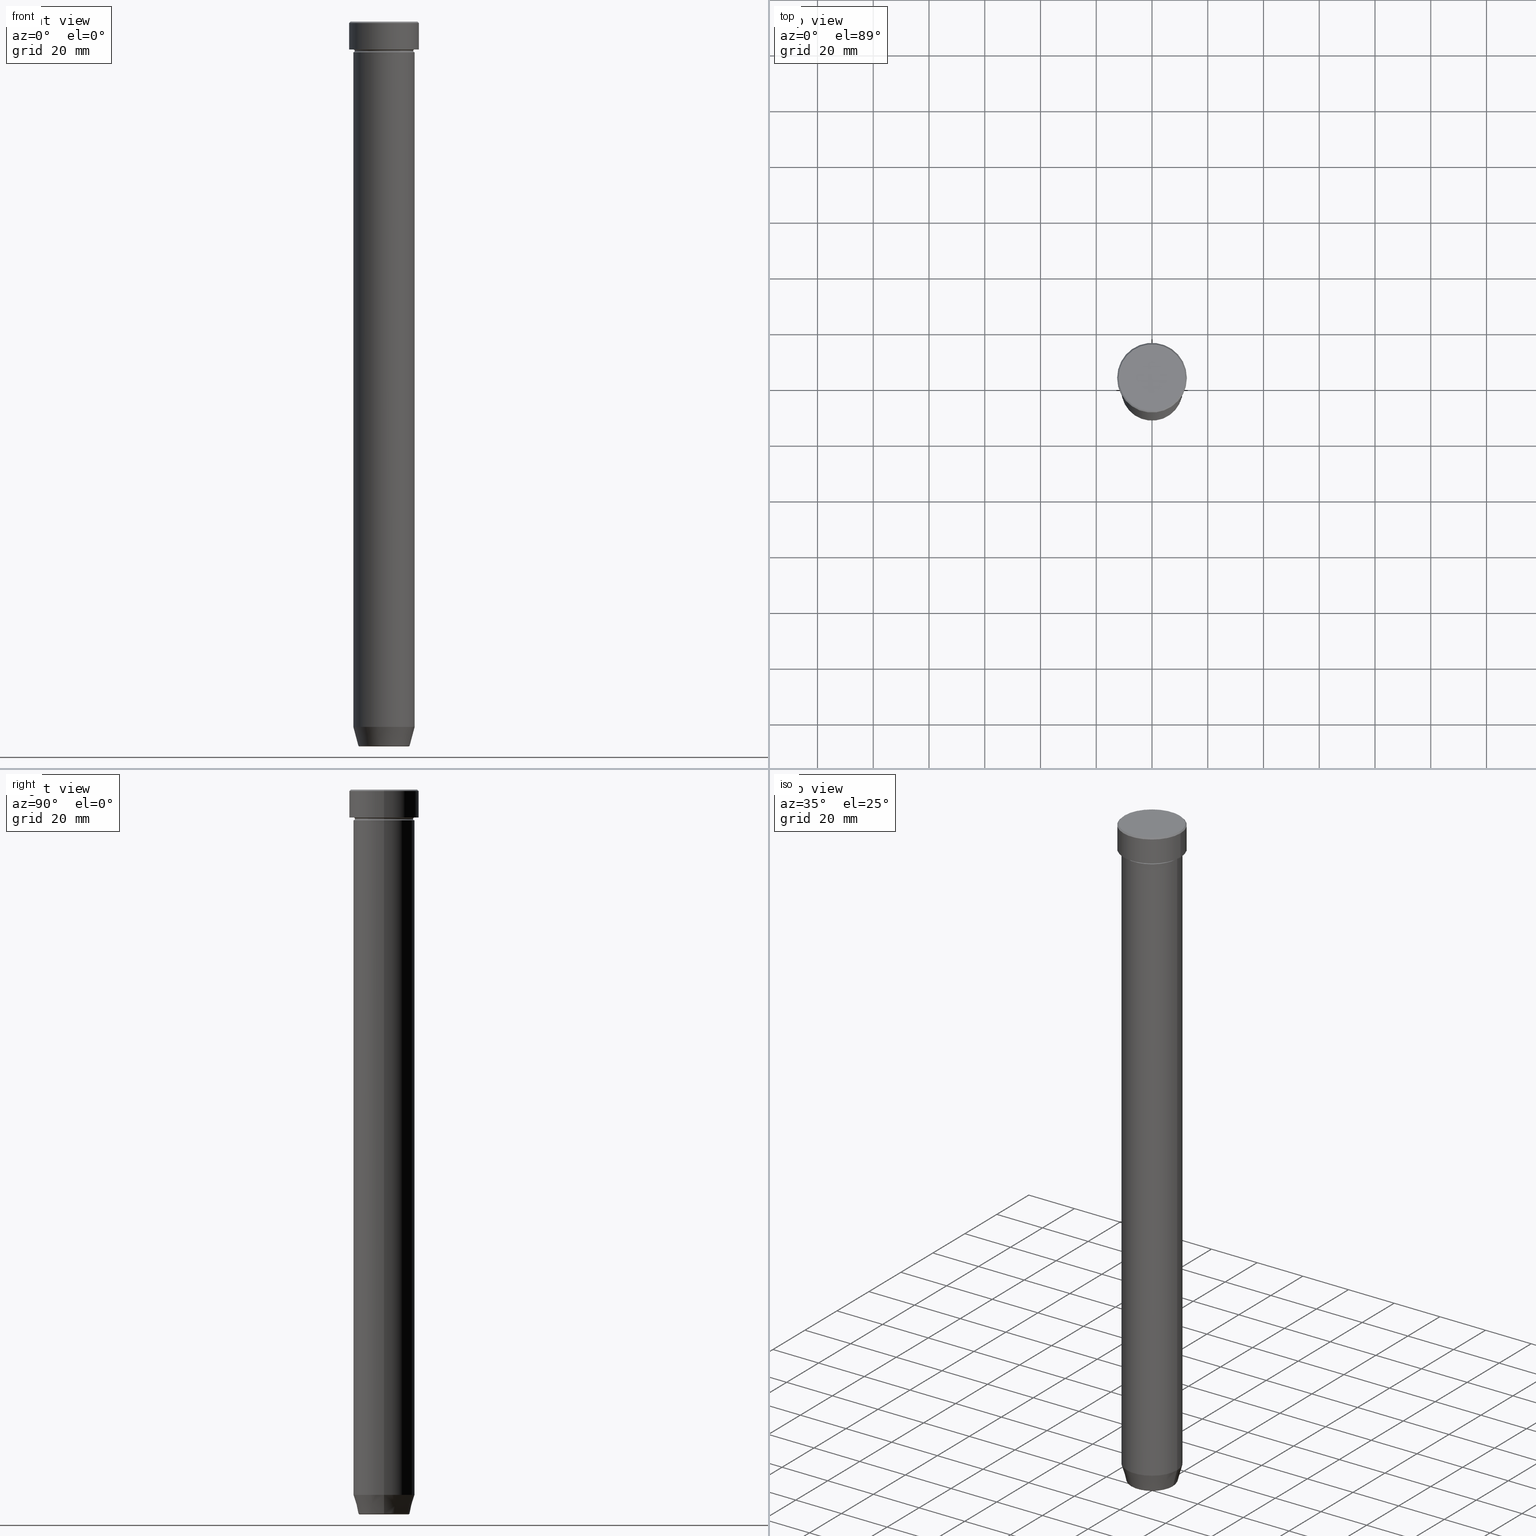
[diagram: canonical four-view strip — front | top / right | iso, engineering-drawing reading convention]
A machine part, canonical four-view strip (front | top / right | iso — engineering-drawing reading convention). The complete STEP part file that produces these views, byte-faithful:
ISO-10303-21;
HEADER;
FILE_DESCRIPTION (( 'STEP AP203' ),
    '1' );
FILE_NAME ('f824.STEP',
    '2024-01-02T19:21:58',
    ( '' ),
    ( '' ),
    'SwSTEP 2.0',
    'SolidWorks 2019',
    '' );
FILE_SCHEMA (( 'CONFIG_CONTROL_DESIGN' ));
ENDSEC;

DATA;
#1 = PERSON_AND_ORGANIZATION_ROLE ( 'design_owner' ) ;
#2 = PERSON_AND_ORGANIZATION_ROLE ( 'creator' ) ;
#3 = DIRECTION ( 'NONE',  ( -1.000000000000000000, 0.000000000000000000, -0.000000000000000000 ) ) ;
#4 = MANIFOLD_SOLID_BREP ( 'Zkosen�1', #141 ) ;
#5 = UNCERTAINTY_MEASURE_WITH_UNIT (LENGTH_MEASURE( 1.000000000000000082E-05 ), #417, 'distance_accuracy_value', 'NONE');
#6 = CIRCLE ( 'NONE', #430, 12.00000000000000355 ) ;
#7 = APPROVAL ( #410, 'NEUR�EN�' ) ;
#8 = CARTESIAN_POINT ( 'NONE',  ( 0.000000000000000000, 0.000000000000000000, -27.00000000000000000 ) ) ;
#9 = PERSON_AND_ORGANIZATION_ROLE ( 'design_supplier' ) ;
#10 = DIRECTION ( 'NONE',  ( 0.000000000000000000, 0.000000000000000000, -1.000000000000000000 ) ) ;
#11 = FACE_OUTER_BOUND ( 'NONE', #218, .T. ) ;
#12 = TOROIDAL_SURFACE ( 'NONE', #189, 11.00000000000000000, 0.5000000000000000000 ) ;
#13 = DIRECTION ( 'NONE',  ( 1.000000000000000000, 0.000000000000000000, 0.000000000000000000 ) ) ;
#14 = VECTOR ( 'NONE', #63, 1000.000000000000000 ) ;
#15 = LINE ( 'NONE', #468, #137 ) ;
#16 = EDGE_CURVE ( 'NONE', #199, #350, #294, .T. ) ;
#17 = ORIENTED_EDGE ( 'NONE', *, *, #381, .F. ) ;
#18 = DIRECTION ( 'NONE',  ( 0.000000000000000000, -0.000000000000000000, 1.000000000000000000 ) ) ;
#19 = DIRECTION ( 'NONE',  ( -1.000000000000000000, 0.000000000000000000, 0.000000000000000000 ) ) ;
#20 = ORIENTED_EDGE ( 'NONE', *, *, #257, .T. ) ;
#21 = CARTESIAN_POINT ( 'NONE',  ( 0.000000000000000000, 0.000000000000000000, 0.000000000000000000 ) ) ;
#22 = VERTEX_POINT ( 'NONE', #111 ) ;
#23 = DIRECTION ( 'NONE',  ( -1.000000000000000000, 0.000000000000000000, -0.000000000000000000 ) ) ;
#24 = CARTESIAN_POINT ( 'NONE',  ( 0.000000000000000000, 0.000000000000000000, 0.000000000000000000 ) ) ;
#25 = AXIS2_PLACEMENT_3D ( 'NONE', #374, #457, #375 ) ;
#26 = EDGE_LOOP ( 'NONE', ( #185, #365, #342, #396 ) ) ;
#27 = CARTESIAN_POINT ( 'NONE',  ( -12.50000000000000000, 1.530808498934191521E-15, 0.000000000000000000 ) ) ;
#28 = ADVANCED_FACE ( 'NONE', ( #513 ), #190, .F. ) ;
#29 = DIRECTION ( 'NONE',  ( 0.000000000000000000, 0.000000000000000000, -1.000000000000000000 ) ) ;
#30 = DIRECTION ( 'NONE',  ( 0.000000000000000000, 0.000000000000000000, -1.000000000000000000 ) ) ;
#31 = ADVANCED_FACE ( 'NONE', ( #421 ), #100, .F. ) ;
#32 = LINE ( 'NONE', #86, #450 ) ;
#33 = AXIS2_PLACEMENT_3D ( 'NONE', #583, #209, #578 ) ;
#34 = ORIENTED_EDGE ( 'NONE', *, *, #50, .T. ) ;
#35 = CONICAL_SURFACE ( 'NONE', #370, 12.00000000000000355, 0.7853981633974465026 ) ;
#36 = DIRECTION ( 'NONE',  ( -1.000000000000000000, 1.224646799147353454E-16, 0.000000000000000000 ) ) ;
#37 = EDGE_CURVE ( 'NONE', #414, #301, #84, .T. ) ;
#38 = CARTESIAN_POINT ( 'NONE',  ( 0.000000000000000000, 0.000000000000000000, -27.00000000000000000 ) ) ;
#39 = ADVANCED_FACE ( 'NONE', ( #221 ), #129, .T. ) ;
#40 = VERTEX_POINT ( 'NONE', #268 ) ;
#41 = CARTESIAN_POINT ( 'NONE',  ( 0.000000000000000000, 0.000000000000000000, -11.00000000000000000 ) ) ;
#42 = AXIS2_PLACEMENT_3D ( 'NONE', #163, #168, #542 ) ;
#43 = DIRECTION ( 'NONE',  ( 0.000000000000000000, 0.000000000000000000, -1.000000000000000000 ) ) ;
#44 = CARTESIAN_POINT ( 'NONE',  ( 0.000000000000000000, 0.000000000000000000, -10.49999999999999822 ) ) ;
#45 = CARTESIAN_POINT ( 'NONE',  ( 0.000000000000000000, 0.000000000000000000, -0.4999999999999988343 ) ) ;
#46 = DIRECTION ( 'NONE',  ( 1.000000000000000000, 0.000000000000000000, 0.000000000000000000 ) ) ;
#47 = APPROVAL_ROLE ( '' ) ;
#48 = AXIS2_PLACEMENT_3D ( 'NONE', #176, #133, #372 ) ;
#49 = APPROVAL_PERSON_ORGANIZATION ( #243, #210, #527 ) ;
#50 = EDGE_CURVE ( 'NONE', #262, #40, #118, .T. ) ;
#51 = DIRECTION ( 'NONE',  ( -0.000000000000000000, -0.000000000000000000, 1.000000000000000000 ) ) ;
#52 = EDGE_CURVE ( 'NONE', #199, #536, #200, .T. ) ;
#53 = COORDINATED_UNIVERSAL_TIME_OFFSET ( 1, 0, .AHEAD. ) ;
#54 = FACE_OUTER_BOUND ( 'NONE', #521, .T. ) ;
#55 = APPROVAL_STATUS ( 'not_yet_approved' ) ;
#56 = CIRCLE ( 'NONE', #48, 10.49999999999999822 ) ;
#57 = CARTESIAN_POINT ( 'NONE',  ( -9.223655072137189492, 1.238341722557647202E-15, -259.6294095225512706 ) ) ;
#58 = CIRCLE ( 'NONE', #138, 0.5000000000000004441 ) ;
#59 = ORIENTED_EDGE ( 'NONE', *, *, #257, .F. ) ;
#60 = DIRECTION ( 'NONE',  ( -1.000000000000000000, 0.000000000000000000, -0.000000000000000000 ) ) ;
#61 = CIRCLE ( 'NONE', #260, 0.5000000000000004441 ) ;
#62 = DIRECTION ( 'NONE',  ( -0.000000000000000000, -0.000000000000000000, 1.000000000000000000 ) ) ;
#63 = DIRECTION ( 'NONE',  ( 0.2588190451025213501, 0.000000000000000000, 0.9659258262890680902 ) ) ;
#64 = EDGE_CURVE ( 'NONE', #125, #287, #460, .T. ) ;
#65 = ADVANCED_BREP_SHAPE_REPRESENTATION ( 'f824', ( #4, #406, #107 ), #366 ) ;
#66 = DIRECTION ( 'NONE',  ( 1.000000000000000000, 0.000000000000000000, 0.000000000000000000 ) ) ;
#67 = CARTESIAN_POINT ( 'NONE',  ( -11.00000000000000000, 1.347111479062088405E-15, -253.0000000000000000 ) ) ;
#68 = ORIENTED_EDGE ( 'NONE', *, *, #327, .F. ) ;
#69 = PLANE ( 'NONE',  #368 ) ;
#70 = AXIS2_PLACEMENT_3D ( 'NONE', #211, #120, #123 ) ;
#71 = CIRCLE ( 'NONE', #273, 12.50000000000000000 ) ;
#72 = DIRECTION ( 'NONE',  ( 1.000000000000000000, 0.000000000000000000, 0.000000000000000000 ) ) ;
#73 = EDGE_LOOP ( 'NONE', ( #304, #424 ) ) ;
#74 = EDGE_LOOP ( 'NONE', ( #486, #573, #298, #539 ) ) ;
#75 = CARTESIAN_POINT ( 'NONE',  ( 0.000000000000000000, 0.000000000000000000, -260.0000000000000000 ) ) ;
#76 = ORIENTED_EDGE ( 'NONE', *, *, #313, .T. ) ;
#77 = ORIENTED_EDGE ( 'NONE', *, *, #126, .F. ) ;
#78 = EDGE_CURVE ( 'NONE', #40, #545, #153, .T. ) ;
#79 = CARTESIAN_POINT ( 'NONE',  ( 8.740692158992656502, 0.000000000000000000, -260.0000000000000000 ) ) ;
#81 = ADVANCED_FACE ( 'NONE', ( #54 ), #480, .F. ) ;
#80 = ORIENTED_EDGE ( 'NONE', *, *, #114, .T. ) ;
#82 = LOCAL_TIME ( 20, 21, 58.00000000000000000, #321 ) ;
#83 = CARTESIAN_POINT ( 'NONE',  ( -11.00000000000000000, 1.347111479062088405E-15, -11.00000000000000000 ) ) ;
#84 = CIRCLE ( 'NONE', #408, 9.223655072137189492 ) ;
#85 = ORIENTED_EDGE ( 'NONE', *, *, #202, .F. ) ;
#86 = CARTESIAN_POINT ( 'NONE',  ( -11.00000000000000000, 1.347111479062088405E-15, 0.000000000000000000 ) ) ;
#87 = CARTESIAN_POINT ( 'NONE',  ( 11.00000000000000000, 0.000000000000000000, -10.49999999999999822 ) ) ;
#88 = DIRECTION ( 'NONE',  ( -0.000000000000000000, -0.000000000000000000, 1.000000000000000000 ) ) ;
#89 = COORDINATED_UNIVERSAL_TIME_OFFSET ( 1, 0, .AHEAD. ) ;
#90 = ORIENTED_EDGE ( 'NONE', *, *, #135, .T. ) ;
#91 = AXIS2_PLACEMENT_3D ( 'NONE', #127, #29, #308 ) ;
#92 = PERSON_AND_ORGANIZATION ( #187, #328 ) ;
#93 = ORIENTED_EDGE ( 'NONE', *, *, #52, .T. ) ;
#94 = PERSON_AND_ORGANIZATION ( #187, #328 ) ;
#95 = ORIENTED_EDGE ( 'NONE', *, *, #143, .T. ) ;
#96 = FACE_OUTER_BOUND ( 'NONE', #139, .T. ) ;
#97 = DIRECTION ( 'NONE',  ( 0.000000000000000000, 0.000000000000000000, 1.000000000000000000 ) ) ;
#98 = EDGE_CURVE ( 'NONE', #301, #346, #567, .T. ) ;
#99 = DIRECTION ( 'NONE',  ( 1.000000000000000000, 0.000000000000000000, 0.000000000000000000 ) ) ;
#100 = PLANE ( 'NONE',  #320 ) ;
#101 = PRODUCT_RELATED_PRODUCT_CATEGORY ( 'detail', '', ( #564 ) ) ;
#102 = DIRECTION ( 'NONE',  ( -1.224646799147353207E-16, 1.000000000000000000, 0.000000000000000000 ) ) ;
#103 = EDGE_LOOP ( 'NONE', ( #464, #445, #17, #173 ) ) ;
#104 = DIRECTION ( 'NONE',  ( 1.000000000000000000, 0.000000000000000000, 0.000000000000000000 ) ) ;
#105 = CALENDAR_DATE ( 2024, 2, 1 ) ;
#106 = DIRECTION ( 'NONE',  ( 1.000000000000000000, 0.000000000000000000, 0.000000000000000000 ) ) ;
#107 = AXIS2_PLACEMENT_3D ( 'NONE', #323, #97, #266 ) ;
#108 = CIRCLE ( 'NONE', #522, 11.00000000000000000 ) ;
#109 = AXIS2_PLACEMENT_3D ( 'NONE', #592, #264, #446 ) ;
#110 = DIRECTION ( 'NONE',  ( -0.000000000000000000, -0.000000000000000000, 1.000000000000000000 ) ) ;
#111 = CARTESIAN_POINT ( 'NONE',  ( 11.00000000000000000, 0.000000000000000000, -27.00000000000000000 ) ) ;
#112 = VERTEX_POINT ( 'NONE', #407 ) ;
#113 = FACE_OUTER_BOUND ( 'NONE', #263, .T. ) ;
#114 = EDGE_CURVE ( 'NONE', #438, #301, #227, .T. ) ;
#115 = EDGE_LOOP ( 'NONE', ( #119, #385, #362, #584 ) ) ;
#116 = DIRECTION ( 'NONE',  ( 0.000000000000000000, 0.000000000000000000, -1.000000000000000000 ) ) ;
#117 = AXIS2_PLACEMENT_3D ( 'NONE', #75, #258, #435 ) ;
#118 = CIRCLE ( 'NONE', #597, 12.00000000000000355 ) ;
#119 = ORIENTED_EDGE ( 'NONE', *, *, #52, .F. ) ;
#120 = DIRECTION ( 'NONE',  ( -0.000000000000000000, -0.000000000000000000, 1.000000000000000000 ) ) ;
#121 = CARTESIAN_POINT ( 'NONE',  ( 0.000000000000000000, 0.000000000000000000, -27.00000000000000000 ) ) ;
#122 = ORIENTED_EDGE ( 'NONE', *, *, #529, .T. ) ;
#123 = DIRECTION ( 'NONE',  ( 1.000000000000000000, 0.000000000000000000, 0.000000000000000000 ) ) ;
#124 = CARTESIAN_POINT ( 'NONE',  ( -12.00000000000000355, 0.000000000000000000, 0.000000000000000000 ) ) ;
#125 = VERTEX_POINT ( 'NONE', #194 ) ;
#126 = EDGE_CURVE ( 'NONE', #422, #220, #399, .T. ) ;
#127 = CARTESIAN_POINT ( 'NONE',  ( 0.000000000000000000, 0.000000000000000000, -0.4999999999999988343 ) ) ;
#128 = AXIS2_PLACEMENT_3D ( 'NONE', #8, #454, #3 ) ;
#129 = CONICAL_SURFACE ( 'NONE', #109, 12.00000000000000355, 0.7853981633974465026 ) ;
#130 = ORIENTED_EDGE ( 'NONE', *, *, #169, .T. ) ;
#131 = DATE_AND_TIME ( #403, #82 ) ;
#132 = DIRECTION ( 'NONE',  ( 1.000000000000000000, 0.000000000000000000, 0.000000000000000000 ) ) ;
#133 = DIRECTION ( 'NONE',  ( -0.000000000000000000, -0.000000000000000000, 1.000000000000000000 ) ) ;
#134 = ORIENTED_EDGE ( 'NONE', *, *, #161, .F. ) ;
#135 = EDGE_CURVE ( 'NONE', #219, #438, #449, .T. ) ;
#136 = CARTESIAN_POINT ( 'NONE',  ( -10.49999999999999822, 1.316495309083404420E-15, -10.49999999999999822 ) ) ;
#137 = VECTOR ( 'NONE', #565, 1000.000000000000000 ) ;
#138 = AXIS2_PLACEMENT_3D ( 'NONE', #515, #102, #285 ) ;
#139 = EDGE_LOOP ( 'NONE', ( #409, #95, #207, #256 ) ) ;
#140 = APPROVAL_ROLE ( '' ) ;
#141 = CLOSED_SHELL ( 'NONE', ( #184, #81, #518, #412, #376, #562, #164, #214, #548, #590, #282, #28, #39 ) ) ;
#142 = FACE_BOUND ( 'NONE', #397, .T. ) ;
#143 = EDGE_CURVE ( 'NONE', #287, #275, #183, .T. ) ;
#144 = DIRECTION ( 'NONE',  ( 0.7071067811865462405, 8.659560562354918067E-17, -0.7071067811865489050 ) ) ;
#145 = CARTESIAN_POINT ( 'NONE',  ( -12.50000000000000000, 1.530808498934191521E-15, -0.4999999999999988343 ) ) ;
#146 = CARTESIAN_POINT ( 'NONE',  ( 9.223655072137189492, 0.000000000000000000, -259.6294095225512706 ) ) ;
#147 = PLANE ( 'NONE',  #336 ) ;
#148 = CARTESIAN_POINT ( 'NONE',  ( 0.000000000000000000, 0.000000000000000000, -259.6294095225512706 ) ) ;
#149 = FACE_OUTER_BOUND ( 'NONE', #355, .T. ) ;
#150 = CARTESIAN_POINT ( 'NONE',  ( 9.124355652982133691, 0.000000000000000000, -260.0000000000000000 ) ) ;
#151 = EDGE_LOOP ( 'NONE', ( #530, #303, #483, #306 ) ) ;
#152 = DIRECTION ( 'NONE',  ( -0.000000000000000000, -0.000000000000000000, 1.000000000000000000 ) ) ;
#153 = LINE ( 'NONE', #472, #337 ) ;
#154 = VERTEX_POINT ( 'NONE', #389 ) ;
#155 = CARTESIAN_POINT ( 'NONE',  ( 0.000000000000000000, 0.000000000000000000, -10.00000000000000000 ) ) ;
#156 = CC_DESIGN_APPROVAL ( #394, ( #471 ) ) ;
#157 = CIRCLE ( 'NONE', #395, 11.00000000000000000 ) ;
#158 = ORIENTED_EDGE ( 'NONE', *, *, #201, .T. ) ;
#159 = APPROVAL_DATE_TIME ( #188, #210 ) ;
#160 = EDGE_CURVE ( 'NONE', #22, #382, #216, .T. ) ;
#161 = EDGE_CURVE ( 'NONE', #595, #112, #526, .T. ) ;
#162 = DIRECTION ( 'NONE',  ( -0.000000000000000000, -0.000000000000000000, 1.000000000000000000 ) ) ;
#163 = CARTESIAN_POINT ( 'NONE',  ( -11.00000000000000000, 0.000000000000000000, -10.50000000000000000 ) ) ;
#164 = ADVANCED_FACE ( 'NONE', ( #113 ), #69, .T. ) ;
#165 = AXIS2_PLACEMENT_3D ( 'NONE', #387, #246, #469 ) ;
#166 = DIRECTION ( 'NONE',  ( -0.000000000000000000, -0.000000000000000000, 1.000000000000000000 ) ) ;
#167 = ORIENTED_EDGE ( 'NONE', *, *, #440, .F. ) ;
#168 = DIRECTION ( 'NONE',  ( -0.000000000000000000, -1.000000000000000000, -0.000000000000000000 ) ) ;
#169 = EDGE_CURVE ( 'NONE', #112, #595, #439, .T. ) ;
#170 = CARTESIAN_POINT ( 'NONE',  ( -11.00000000000000000, 1.347111479062088405E-15, -27.00000000000000000 ) ) ;
#171 = ORIENTED_EDGE ( 'NONE', *, *, #50, .F. ) ;
#172 = AXIS2_PLACEMENT_3D ( 'NONE', #391, #152, #519 ) ;
#173 = ORIENTED_EDGE ( 'NONE', *, *, #98, .F. ) ;
#174 = AXIS2_PLACEMENT_3D ( 'NONE', #41, #166, #489 ) ;
#175 = ORIENTED_EDGE ( 'NONE', *, *, #78, .F. ) ;
#176 = CARTESIAN_POINT ( 'NONE',  ( 0.000000000000000000, 0.000000000000000000, -10.49999999999999822 ) ) ;
#177 = CARTESIAN_POINT ( 'NONE',  ( -11.00000000000000000, 1.347111479062088405E-15, 0.000000000000000000 ) ) ;
#178 = PERSON_AND_ORGANIZATION ( #187, #328 ) ;
#179 = DIRECTION ( 'NONE',  ( -0.000000000000000000, -0.000000000000000000, 1.000000000000000000 ) ) ;
#180 = COORDINATED_UNIVERSAL_TIME_OFFSET ( 1, 0, .AHEAD. ) ;
#181 = EDGE_CURVE ( 'NONE', #40, #262, #6, .T. ) ;
#182 = AXIS2_PLACEMENT_3D ( 'NONE', #478, #253, #13 ) ;
#183 = CIRCLE ( 'NONE', #165, 0.5000000000000004441 ) ;
#184 = ADVANCED_FACE ( 'NONE', ( #534 ), #35, .T. ) ;
#185 = ORIENTED_EDGE ( 'NONE', *, *, #135, .F. ) ;
#186 = DIRECTION ( 'NONE',  ( -0.000000000000000000, -0.000000000000000000, 1.000000000000000000 ) ) ;
#187 = PERSON ( 'NEUR�EN�', 'NEUR�EN�', 'NEUR�EN�', ('NEUR�EN�'), ('NEUR�EN�'), ('NEUR�EN�') ) ;
#188 = DATE_AND_TIME ( #105, #547 ) ;
#189 = AXIS2_PLACEMENT_3D ( 'NONE', #44, #231, #46 ) ;
#190 = TOROIDAL_SURFACE ( 'NONE', #512, 11.00000000000000000, 0.5000000000000000000 ) ;
#191 = ORIENTED_EDGE ( 'NONE', *, *, #222, .T. ) ;
#192 = FACE_OUTER_BOUND ( 'NONE', #363, .T. ) ;
#193 = DIRECTION ( 'NONE',  ( 0.000000000000000000, 0.000000000000000000, -1.000000000000000000 ) ) ;
#194 = CARTESIAN_POINT ( 'NONE',  ( 10.49999999999999822, 0.000000000000000000, -10.49999999999999822 ) ) ;
#195 = EDGE_CURVE ( 'NONE', #382, #275, #32, .T. ) ;
#196 = ORIENTED_EDGE ( 'NONE', *, *, #292, .T. ) ;
#197 = FACE_OUTER_BOUND ( 'NONE', #553, .T. ) ;
#198 = DIRECTION ( 'NONE',  ( 1.000000000000000000, 0.000000000000000000, 0.000000000000000000 ) ) ;
#199 = VERTEX_POINT ( 'NONE', #401 ) ;
#200 = LINE ( 'NONE', #27, #281 ) ;
#201 = EDGE_CURVE ( 'NONE', #438, #219, #310, .T. ) ;
#202 = EDGE_CURVE ( 'NONE', #312, #220, #254, .T. ) ;
#203 = DIRECTION ( 'NONE',  ( 1.000000000000000000, 0.000000000000000000, 0.000000000000000000 ) ) ;
#204 = AXIS2_PLACEMENT_3D ( 'NONE', #344, #300, #572 ) ;
#205 = AXIS2_PLACEMENT_3D ( 'NONE', #560, #371, #367 ) ;
#206 = DIRECTION ( 'NONE',  ( -0.000000000000000000, -0.000000000000000000, 1.000000000000000000 ) ) ;
#207 = ORIENTED_EDGE ( 'NONE', *, *, #224, .T. ) ;
#208 = APPLICATION_CONTEXT ( 'configuration controlled 3d designs of mechanical parts and assemblies' ) ;
#209 = DIRECTION ( 'NONE',  ( -0.000000000000000000, -0.000000000000000000, 1.000000000000000000 ) ) ;
#210 = APPROVAL ( #55, 'NEUR�EN�' ) ;
#211 = CARTESIAN_POINT ( 'NONE',  ( 0.000000000000000000, 0.000000000000000000, -260.0000000000000000 ) ) ;
#212 = DIRECTION ( 'NONE',  ( 1.000000000000000000, 0.000000000000000000, 0.000000000000000000 ) ) ;
#213 = TOROIDAL_SURFACE ( 'NONE', #557, 8.740692158992656502, 0.5000000000000000000 ) ;
#214 = ADVANCED_FACE ( 'NONE', ( #229 ), #354, .T. ) ;
#215 = CC_DESIGN_APPROVAL ( #210, ( #234 ) ) ;
#216 = CIRCLE ( 'NONE', #558, 11.00000000000000000 ) ;
#217 = DIRECTION ( 'NONE',  ( -0.000000000000000000, -0.000000000000000000, 1.000000000000000000 ) ) ;
#218 = EDGE_LOOP ( 'NONE', ( #245, #576, #420, #505 ) ) ;
#219 = VERTEX_POINT ( 'NONE', #587 ) ;
#220 = VERTEX_POINT ( 'NONE', #170 ) ;
#221 = FACE_OUTER_BOUND ( 'NONE', #591, .T. ) ;
#222 = EDGE_CURVE ( 'NONE', #22, #154, #442, .T. ) ;
#223 = DIRECTION ( 'NONE',  ( 1.000000000000000000, 0.000000000000000000, 0.000000000000000000 ) ) ;
#224 = EDGE_CURVE ( 'NONE', #275, #154, #501, .T. ) ;
#225 = ORIENTED_EDGE ( 'NONE', *, *, #271, .T. ) ;
#226 = DIRECTION ( 'NONE',  ( 1.000000000000000000, 0.000000000000000000, 0.000000000000000000 ) ) ;
#227 = CIRCLE ( 'NONE', #329, 0.5000000000000004441 ) ;
#228 = APPLICATION_PROTOCOL_DEFINITION ( 'international standard', 'config_control_design', 1994, #238 ) ;
#229 = FACE_OUTER_BOUND ( 'NONE', #115, .T. ) ;
#230 = CARTESIAN_POINT ( 'NONE',  ( 12.50000000000000000, 0.000000000000000000, -10.00000000000000000 ) ) ;
#231 = DIRECTION ( 'NONE',  ( -0.000000000000000000, -0.000000000000000000, 1.000000000000000000 ) ) ;
#232 = PRODUCT_DEFINITION_FORMATION_WITH_SPECIFIED_SOURCE ( 'LIBOVOLN�', '', #564, .NOT_KNOWN. ) ;
#233 = FACE_OUTER_BOUND ( 'NONE', #73, .T. ) ;
#234 = SECURITY_CLASSIFICATION ( '', '', #326 ) ;
#235 = PERSON_AND_ORGANIZATION ( #187, #328 ) ;
#236 = ORIENTED_EDGE ( 'NONE', *, *, #169, .F. ) ;
#237 = CIRCLE ( 'NONE', #462, 11.00000000000000000 ) ;
#238 = APPLICATION_CONTEXT ( 'configuration controlled 3d designs of mechanical parts and assemblies' ) ;
#239 = DIRECTION ( 'NONE',  ( 1.000000000000000000, 0.000000000000000000, 0.000000000000000000 ) ) ;
#240 = CALENDAR_DATE ( 2024, 2, 1 ) ;
#241 = CARTESIAN_POINT ( 'NONE',  ( 0.000000000000000000, 2.571758278209441898E-14, -260.0000000000000000 ) ) ;
#242 = AXIS2_PLACEMENT_3D ( 'NONE', #447, #179, #555 ) ;
#243 = PERSON_AND_ORGANIZATION ( #187, #328 ) ;
#244 = CIRCLE ( 'NONE', #293, 12.50000000000000000 ) ;
#245 = ORIENTED_EDGE ( 'NONE', *, *, #143, .F. ) ;
#246 = DIRECTION ( 'NONE',  ( 1.224646799147353207E-16, 1.000000000000000000, 0.000000000000000000 ) ) ;
#247 = DIRECTION ( 'NONE',  ( -0.000000000000000000, -0.000000000000000000, 1.000000000000000000 ) ) ;
#248 = SHAPE_DEFINITION_REPRESENTATION ( #359, #65 ) ;
#249 = EDGE_LOOP ( 'NONE', ( #68, #405, #581, #236 ) ) ;
#250 = DIRECTION ( 'NONE',  ( 0.000000000000000000, -0.000000000000000000, 1.000000000000000000 ) ) ;
#251 = DIRECTION ( 'NONE',  ( 0.000000000000000000, 0.000000000000000000, -1.000000000000000000 ) ) ;
#252 = CARTESIAN_POINT ( 'NONE',  ( 0.000000000000000000, 0.000000000000000000, -10.00000000000000000 ) ) ;
#253 = DIRECTION ( 'NONE',  ( -0.000000000000000000, -0.000000000000000000, 1.000000000000000000 ) ) ;
#254 = CIRCLE ( 'NONE', #528, 11.00000000000000000 ) ;
#255 = LINE ( 'NONE', #434, #357 ) ;
#256 = ORIENTED_EDGE ( 'NONE', *, *, #390, .F. ) ;
#257 = EDGE_CURVE ( 'NONE', #382, #22, #237, .T. ) ;
#258 = DIRECTION ( 'NONE',  ( -0.000000000000000000, -0.000000000000000000, 1.000000000000000000 ) ) ;
#259 = CIRCLE ( 'NONE', #242, 11.00000000000000000 ) ;
#260 = AXIS2_PLACEMENT_3D ( 'NONE', #87, #599, #361 ) ;
#261 = AXIS2_PLACEMENT_3D ( 'NONE', #155, #162, #477 ) ;
#262 = VERTEX_POINT ( 'NONE', #270 ) ;
#263 = EDGE_LOOP ( 'NONE', ( #34, #517 ) ) ;
#264 = DIRECTION ( 'NONE',  ( 0.000000000000000000, 0.000000000000000000, -1.000000000000000000 ) ) ;
#265 = DIRECTION ( 'NONE',  ( -0.000000000000000000, -0.000000000000000000, 1.000000000000000000 ) ) ;
#266 = DIRECTION ( 'NONE',  ( 1.000000000000000000, 0.000000000000000000, 0.000000000000000000 ) ) ;
#267 = ORIENTED_EDGE ( 'NONE', *, *, #554, .F. ) ;
#268 = CARTESIAN_POINT ( 'NONE',  ( 12.00000000000000355, 1.500192328955507734E-15, 0.000000000000000000 ) ) ;
#269 = CC_DESIGN_SECURITY_CLASSIFICATION ( #234, ( #232 ) ) ;
#270 = CARTESIAN_POINT ( 'NONE',  ( -12.00000000000000355, 0.000000000000000000, 0.000000000000000000 ) ) ;
#271 = EDGE_CURVE ( 'NONE', #262, #536, #540, .T. ) ;
#272 = PERSON_AND_ORGANIZATION ( #187, #328 ) ;
#273 = AXIS2_PLACEMENT_3D ( 'NONE', #45, #43, #239 ) ;
#274 = EDGE_LOOP ( 'NONE', ( #77, #311, #541, #360 ) ) ;
#275 = VERTEX_POINT ( 'NONE', #83 ) ;
#276 = CYLINDRICAL_SURFACE ( 'NONE', #290, 11.00000000000000000 ) ;
#277 = CALENDAR_DATE ( 2024, 2, 1 ) ;
#278 = CC_DESIGN_PERSON_AND_ORGANIZATION_ASSIGNMENT ( #235, #503, ( #232 ) ) ;
#279 = CARTESIAN_POINT ( 'NONE',  ( 11.00000000000000000, 0.000000000000000000, -253.0000000000000000 ) ) ;
#280 = PERSON_AND_ORGANIZATION_ROLE ( 'classification_officer' ) ;
#281 = VECTOR ( 'NONE', #425, 1000.000000000000000 ) ;
#282 = ADVANCED_FACE ( 'NONE', ( #11 ), #598, .F. ) ;
#283 = DIRECTION ( 'NONE',  ( 1.000000000000000000, 0.000000000000000000, 0.000000000000000000 ) ) ;
#284 = CARTESIAN_POINT ( 'NONE',  ( 0.000000000000000000, 0.000000000000000000, 0.000000000000000000 ) ) ;
#285 = DIRECTION ( 'NONE',  ( -1.000000000000000000, -1.224646799147353454E-16, 0.000000000000000000 ) ) ;
#286 = EDGE_CURVE ( 'NONE', #301, #414, #566, .T. ) ;
#287 = VERTEX_POINT ( 'NONE', #136 ) ;
#288 = CC_DESIGN_DATE_AND_TIME_ASSIGNMENT ( #506, #556, ( #471 ) ) ;
#289 = DIRECTION ( 'NONE',  ( -1.000000000000000000, 0.000000000000000000, 0.000000000000000000 ) ) ;
#290 = AXIS2_PLACEMENT_3D ( 'NONE', #330, #341, #66 ) ;
#291 = DATE_TIME_ROLE ( 'classification_date' ) ;
#292 = EDGE_CURVE ( 'NONE', #536, #545, #71, .T. ) ;
#293 = AXIS2_PLACEMENT_3D ( 'NONE', #325, #508, #99 ) ;
#294 = CIRCLE ( 'NONE', #579, 12.50000000000000000 ) ;
#295 = CARTESIAN_POINT ( 'NONE',  ( 0.000000000000000000, 0.000000000000000000, -260.0000000000000000 ) ) ;
#296 = CARTESIAN_POINT ( 'NONE',  ( 0.000000000000000000, 0.000000000000000000, -10.50000000000000000 ) ) ;
#297 = FACE_OUTER_BOUND ( 'NONE', #448, .T. ) ;
#298 = ORIENTED_EDGE ( 'NONE', *, *, #292, .F. ) ;
#299 = DIRECTION ( 'NONE',  ( -0.000000000000000000, -0.000000000000000000, 1.000000000000000000 ) ) ;
#300 = DIRECTION ( 'NONE',  ( -0.000000000000000000, -0.000000000000000000, 1.000000000000000000 ) ) ;
#301 = VERTEX_POINT ( 'NONE', #146 ) ;
#302 = DIRECTION ( 'NONE',  ( 1.224646799147353207E-16, 1.000000000000000000, 0.000000000000000000 ) ) ;
#303 = ORIENTED_EDGE ( 'NONE', *, *, #37, .T. ) ;
#304 = ORIENTED_EDGE ( 'NONE', *, *, #313, .F. ) ;
#305 = DIRECTION ( 'NONE',  ( -0.7071067811865462405, 0.000000000000000000, -0.7071067811865489050 ) ) ;
#306 = ORIENTED_EDGE ( 'NONE', *, *, #307, .F. ) ;
#307 = EDGE_CURVE ( 'NONE', #422, #346, #349, .T. ) ;
#308 = DIRECTION ( 'NONE',  ( 1.000000000000000000, 0.000000000000000000, 0.000000000000000000 ) ) ;
#309 = CIRCLE ( 'NONE', #91, 12.50000000000000000 ) ;
#310 = CIRCLE ( 'NONE', #481, 8.740692158992656502 ) ;
#311 = ORIENTED_EDGE ( 'NONE', *, *, #307, .T. ) ;
#312 = VERTEX_POINT ( 'NONE', #331 ) ;
#313 = EDGE_CURVE ( 'NONE', #350, #199, #244, .T. ) ;
#314 = DIRECTION ( 'NONE',  ( 0.000000000000000000, 0.000000000000000000, -1.000000000000000000 ) ) ;
#315 = CC_DESIGN_DATE_AND_TIME_ASSIGNMENT ( #413, #291, ( #234 ) ) ;
#316 = DIRECTION ( 'NONE',  ( 1.000000000000000000, 0.000000000000000000, 0.000000000000000000 ) ) ;
#317 = CARTESIAN_POINT ( 'NONE',  ( 12.50000000000000000, 0.000000000000000000, -0.4999999999999988343 ) ) ;
#318 = APPLICATION_PROTOCOL_DEFINITION ( 'international standard', 'config_control_design', 1994, #208 ) ;
#319 = ORIENTED_EDGE ( 'NONE', *, *, #428, .F. ) ;
#320 = AXIS2_PLACEMENT_3D ( 'NONE', #241, #250, #283 ) ;
#321 = COORDINATED_UNIVERSAL_TIME_OFFSET ( 1, 0, .AHEAD. ) ;
#322 = CARTESIAN_POINT ( 'NONE',  ( 0.000000000000000000, 0.000000000000000000, -259.5000000000000000 ) ) ;
#323 = CARTESIAN_POINT ( 'NONE',  ( 0.000000000000000000, 0.000000000000000000, 0.000000000000000000 ) ) ;
#324 = APPROVAL_DATE_TIME ( #131, #394 ) ;
#325 = CARTESIAN_POINT ( 'NONE',  ( 0.000000000000000000, 0.000000000000000000, -10.00000000000000000 ) ) ;
#326 = SECURITY_CLASSIFICATION_LEVEL ( 'unclassified' ) ;
#327 = EDGE_CURVE ( 'NONE', #125, #112, #58, .T. ) ;
#328 = ORGANIZATION ( 'NEUR�EN�', 'NEUR�EN�', '' ) ;
#329 = AXIS2_PLACEMENT_3D ( 'NONE', #411, #332, #10 ) ;
#330 = CARTESIAN_POINT ( 'NONE',  ( 0.000000000000000000, 0.000000000000000000, 0.000000000000000000 ) ) ;
#331 = CARTESIAN_POINT ( 'NONE',  ( 11.00000000000000000, 0.000000000000000000, -27.00000000000000000 ) ) ;
#332 = DIRECTION ( 'NONE',  ( 0.000000000000000000, -1.000000000000000000, 0.000000000000000000 ) ) ;
#333 = EDGE_LOOP ( 'NONE', ( #398, #122 ) ) ;
#334 = ORIENTED_EDGE ( 'NONE', *, *, #161, .T. ) ;
#335 = FACE_OUTER_BOUND ( 'NONE', #274, .T. ) ;
#336 = AXIS2_PLACEMENT_3D ( 'NONE', #516, #193, #60 ) ;
#337 = VECTOR ( 'NONE', #144, 999.9999999999998863 ) ;
#338 = AXIS2_PLACEMENT_3D ( 'NONE', #593, #88, #132 ) ;
#339 = ORIENTED_EDGE ( 'NONE', *, *, #195, .F. ) ;
#340 = DIRECTION ( 'NONE',  ( 0.000000000000000000, 0.000000000000000000, -1.000000000000000000 ) ) ;
#341 = DIRECTION ( 'NONE',  ( -0.000000000000000000, -0.000000000000000000, 1.000000000000000000 ) ) ;
#342 = ORIENTED_EDGE ( 'NONE', *, *, #286, .F. ) ;
#343 = DIRECTION ( 'NONE',  ( 1.000000000000000000, 0.000000000000000000, 0.000000000000000000 ) ) ;
#344 = CARTESIAN_POINT ( 'NONE',  ( 0.000000000000000000, 0.000000000000000000, -10.49999999999999822 ) ) ;
#345 = CONICAL_SURFACE ( 'NONE', #70, 9.124355652982133691, 0.2617993877991500740 ) ;
#346 = VERTEX_POINT ( 'NONE', #279 ) ;
#347 = LINE ( 'NONE', #432, #577 ) ;
#348 = AXIS2_PLACEMENT_3D ( 'NONE', #559, #51, #511 ) ;
#349 = CIRCLE ( 'NONE', #348, 11.00000000000000000 ) ;
#350 = VERTEX_POINT ( 'NONE', #230 ) ;
#351 = DIRECTION ( 'NONE',  ( -0.000000000000000000, -0.000000000000000000, 1.000000000000000000 ) ) ;
#352 = ADVANCED_FACE ( 'NONE', ( #465 ), #459, .T. ) ;
#353 = ORIENTED_EDGE ( 'NONE', *, *, #37, .F. ) ;
#354 = CYLINDRICAL_SURFACE ( 'NONE', #338, 12.50000000000000000 ) ;
#355 = EDGE_LOOP ( 'NONE', ( #443, #59 ) ) ;
#356 = AXIS2_PLACEMENT_3D ( 'NONE', #322, #461, #502 ) ;
#357 = VECTOR ( 'NONE', #392, 1000.000000000000000 ) ;
#358 = CARTESIAN_POINT ( 'NONE',  ( 0.000000000000000000, 0.000000000000000000, -253.0000000000000000 ) ) ;
#359 = PRODUCT_DEFINITION_SHAPE ( 'NONE', 'NONE',  #471 ) ;
#360 = ORIENTED_EDGE ( 'NONE', *, *, #529, .F. ) ;
#361 = DIRECTION ( 'NONE',  ( 0.000000000000000000, 0.000000000000000000, -1.000000000000000000 ) ) ;
#362 = ORIENTED_EDGE ( 'NONE', *, *, #440, .T. ) ;
#363 = EDGE_LOOP ( 'NONE', ( #76, #93, #196, #167 ) ) ;
#364 = CALENDAR_DATE ( 2024, 2, 1 ) ;
#365 = ORIENTED_EDGE ( 'NONE', *, *, #487, .T. ) ;
#366 =( GEOMETRIC_REPRESENTATION_CONTEXT ( 3 ) GLOBAL_UNCERTAINTY_ASSIGNED_CONTEXT ( ( #5 ) ) GLOBAL_UNIT_ASSIGNED_CONTEXT ( ( #417, #444, #596 ) ) REPRESENTATION_CONTEXT ( 'NONE', 'WORKASPACE' ) );
#367 = DIRECTION ( 'NONE',  ( 1.000000000000000000, 0.000000000000000000, 0.000000000000000000 ) ) ;
#368 = AXIS2_PLACEMENT_3D ( 'NONE', #427, #18, #198 ) ;
#369 = PLANE ( 'NONE',  #128 ) ;
#370 = AXIS2_PLACEMENT_3D ( 'NONE', #479, #116, #494 ) ;
#371 = DIRECTION ( 'NONE',  ( -0.000000000000000000, -0.000000000000000000, 1.000000000000000000 ) ) ;
#372 = DIRECTION ( 'NONE',  ( 1.000000000000000000, 0.000000000000000000, 0.000000000000000000 ) ) ;
#373 = APPROVAL_DATE_TIME ( #456, #7 ) ;
#374 = CARTESIAN_POINT ( 'NONE',  ( 0.000000000000000000, 0.000000000000000000, -10.50000000000000000 ) ) ;
#375 = DIRECTION ( 'NONE',  ( -1.000000000000000000, 0.000000000000000000, 0.000000000000000000 ) ) ;
#377 = ORIENTED_EDGE ( 'NONE', *, *, #126, .T. ) ;
#376 = ADVANCED_FACE ( 'NONE', ( #192 ), #570, .T. ) ;
#378 = TOROIDAL_SURFACE ( 'NONE', #356, 8.740692158992656502, 0.5000000000000000000 ) ;
#379 = CARTESIAN_POINT ( 'NONE',  ( 0.000000000000000000, 12.50000000000000000, -10.00000000000000000 ) ) ;
#380 = CC_DESIGN_PERSON_AND_ORGANIZATION_ASSIGNMENT ( #92, #2, ( #471 ) ) ;
#381 = EDGE_CURVE ( 'NONE', #346, #422, #108, .T. ) ;
#382 = VERTEX_POINT ( 'NONE', #496 ) ;
#383 = CARTESIAN_POINT ( 'NONE',  ( 0.000000000000000000, 0.000000000000000000, -259.6294095225512706 ) ) ;
#384 = COORDINATED_UNIVERSAL_TIME_OFFSET ( 1, 0, .AHEAD. ) ;
#385 = ORIENTED_EDGE ( 'NONE', *, *, #16, .T. ) ;
#386 = CC_DESIGN_PERSON_AND_ORGANIZATION_ASSIGNMENT ( #178, #1, ( #564 ) ) ;
#387 = CARTESIAN_POINT ( 'NONE',  ( -11.00000000000000000, 1.347111479062088405E-15, -10.49999999999999822 ) ) ;
#388 = ORIENTED_EDGE ( 'NONE', *, *, #532, .T. ) ;
#389 = CARTESIAN_POINT ( 'NONE',  ( 11.00000000000000000, 0.000000000000000000, -11.00000000000000000 ) ) ;
#390 = EDGE_CURVE ( 'NONE', #125, #154, #61, .T. ) ;
#391 = CARTESIAN_POINT ( 'NONE',  ( 0.000000000000000000, 0.000000000000000000, 0.000000000000000000 ) ) ;
#392 = DIRECTION ( 'NONE',  ( -0.2588190451025213501, 3.169619151431772337E-17, 0.9659258262890680902 ) ) ;
#393 = DIRECTION ( 'NONE',  ( -0.000000000000000000, -0.000000000000000000, 1.000000000000000000 ) ) ;
#394 = APPROVAL ( #451, 'NEUR�EN�' ) ;
#395 = AXIS2_PLACEMENT_3D ( 'NONE', #580, #482, #72 ) ;
#396 = ORIENTED_EDGE ( 'NONE', *, *, #114, .F. ) ;
#397 = EDGE_LOOP ( 'NONE', ( #334, #130 ) ) ;
#398 = ORIENTED_EDGE ( 'NONE', *, *, #202, .T. ) ;
#399 = LINE ( 'NONE', #177, #418 ) ;
#400 = CARTESIAN_POINT ( 'NONE',  ( 0.000000000000000000, 0.000000000000000000, 0.000000000000000000 ) ) ;
#401 = CARTESIAN_POINT ( 'NONE',  ( -12.50000000000000000, 1.530808498934191521E-15, -10.00000000000000000 ) ) ;
#402 = MECHANICAL_CONTEXT ( 'NONE', #238, 'mechanical' ) ;
#403 = CALENDAR_DATE ( 2024, 2, 1 ) ;
#404 = EDGE_CURVE ( 'NONE', #414, #422, #255, .T. ) ;
#405 = ORIENTED_EDGE ( 'NONE', *, *, #64, .T. ) ;
#406 = MANIFOLD_SOLID_BREP ( 'Zaoblit4', #429 ) ;
#407 = CARTESIAN_POINT ( 'NONE',  ( 11.00000000000000000, 1.347111479062088405E-15, -10.00000000000000000 ) ) ;
#408 = AXIS2_PLACEMENT_3D ( 'NONE', #383, #247, #19 ) ;
#409 = ORIENTED_EDGE ( 'NONE', *, *, #532, .F. ) ;
#410 = APPROVAL_STATUS ( 'not_yet_approved' ) ;
#411 = CARTESIAN_POINT ( 'NONE',  ( 8.740692158992656502, 0.000000000000000000, -259.5000000000000000 ) ) ;
#412 = ADVANCED_FACE ( 'NONE', ( #297 ), #514, .T. ) ;
#413 = DATE_AND_TIME ( #240, #524 ) ;
#414 = VERTEX_POINT ( 'NONE', #57 ) ;
#415 = CARTESIAN_POINT ( 'NONE',  ( -11.00000000000000000, 0.000000000000000000, -10.00000000000000000 ) ) ;
#416 = CC_DESIGN_PERSON_AND_ORGANIZATION_ASSIGNMENT ( #94, #9, ( #232 ) ) ;
#417 =( LENGTH_UNIT ( ) NAMED_UNIT ( * ) SI_UNIT ( .MILLI., .METRE. ) );
#418 = VECTOR ( 'NONE', #393, 1000.000000000000000 ) ;
#419 = VECTOR ( 'NONE', #265, 1000.000000000000000 ) ;
#420 = ORIENTED_EDGE ( 'NONE', *, *, #390, .T. ) ;
#421 = FACE_OUTER_BOUND ( 'NONE', #475, .T. ) ;
#422 = VERTEX_POINT ( 'NONE', #67 ) ;
#423 = DIRECTION ( 'NONE',  ( 1.000000000000000000, 0.000000000000000000, 0.000000000000000000 ) ) ;
#424 = ORIENTED_EDGE ( 'NONE', *, *, #16, .F. ) ;
#425 = DIRECTION ( 'NONE',  ( -0.000000000000000000, -0.000000000000000000, 1.000000000000000000 ) ) ;
#426 = EDGE_CURVE ( 'NONE', #154, #275, #157, .T. ) ;
#427 = CARTESIAN_POINT ( 'NONE',  ( 0.000000000000000000, 0.000000000000000000, 0.000000000000000000 ) ) ;
#428 = EDGE_CURVE ( 'NONE', #287, #595, #436, .T. ) ;
#429 = CLOSED_SHELL ( 'NONE', ( #497, #476, #352, #546, #588, #495, #31, #575 ) ) ;
#430 = AXIS2_PLACEMENT_3D ( 'NONE', #24, #206, #343 ) ;
#431 = ORIENTED_EDGE ( 'NONE', *, *, #201, .F. ) ;
#432 = CARTESIAN_POINT ( 'NONE',  ( 12.50000000000000000, 0.000000000000000000, 0.000000000000000000 ) ) ;
#433 = ORIENTED_EDGE ( 'NONE', *, *, #224, .F. ) ;
#434 = CARTESIAN_POINT ( 'NONE',  ( -9.124355652982133691, 1.117411294470662806E-15, -260.0000000000000000 ) ) ;
#435 = DIRECTION ( 'NONE',  ( 1.000000000000000000, 0.000000000000000000, 0.000000000000000000 ) ) ;
#436 = CIRCLE ( 'NONE', #42, 0.5000000000000004441 ) ;
#437 = CARTESIAN_POINT ( 'NONE',  ( -8.740692158992656502, 1.070426067484272519E-15, -259.5000000000000000 ) ) ;
#438 = VERTEX_POINT ( 'NONE', #79 ) ;
#439 = CIRCLE ( 'NONE', #261, 11.00000000000000000 ) ;
#440 = EDGE_CURVE ( 'NONE', #350, #545, #347, .T. ) ;
#441 = CARTESIAN_POINT ( 'NONE',  ( 0.000000000000000000, 0.000000000000000000, -260.0000000000000000 ) ) ;
#442 = LINE ( 'NONE', #589, #419 ) ;
#443 = ORIENTED_EDGE ( 'NONE', *, *, #160, .F. ) ;
#444 =( NAMED_UNIT ( * ) PLANE_ANGLE_UNIT ( ) SI_UNIT ( $, .RADIAN. ) );
#445 = ORIENTED_EDGE ( 'NONE', *, *, #404, .T. ) ;
#446 = DIRECTION ( 'NONE',  ( -1.000000000000000000, 0.000000000000000000, 0.000000000000000000 ) ) ;
#447 = CARTESIAN_POINT ( 'NONE',  ( 0.000000000000000000, 0.000000000000000000, -27.00000000000000000 ) ) ;
#448 = EDGE_LOOP ( 'NONE', ( #582, #452, #484, #466 ) ) ;
#449 = CIRCLE ( 'NONE', #470, 8.740692158992656502 ) ;
#450 = VECTOR ( 'NONE', #217, 1000.000000000000000 ) ;
#451 = APPROVAL_STATUS ( 'not_yet_approved' ) ;
#452 = ORIENTED_EDGE ( 'NONE', *, *, #195, .T. ) ;
#453 = DIRECTION ( 'NONE',  ( -1.000000000000000000, 0.000000000000000000, 0.000000000000000000 ) ) ;
#454 = DIRECTION ( 'NONE',  ( 0.000000000000000000, 0.000000000000000000, -1.000000000000000000 ) ) ;
#455 = EDGE_CURVE ( 'NONE', #545, #536, #309, .T. ) ;
#456 = DATE_AND_TIME ( #277, #467 ) ;
#457 = DIRECTION ( 'NONE',  ( 0.000000000000000000, 0.000000000000000000, -1.000000000000000000 ) ) ;
#458 = AXIS2_PLACEMENT_3D ( 'NONE', #379, #251, #23 ) ;
#459 = CYLINDRICAL_SURFACE ( 'NONE', #182, 11.00000000000000000 ) ;
#460 = CIRCLE ( 'NONE', #204, 10.49999999999999822 ) ;
#461 = DIRECTION ( 'NONE',  ( -0.000000000000000000, -0.000000000000000000, 1.000000000000000000 ) ) ;
#462 = AXIS2_PLACEMENT_3D ( 'NONE', #38, #351, #226 ) ;
#463 = PERSON_AND_ORGANIZATION ( #187, #328 ) ;
#464 = ORIENTED_EDGE ( 'NONE', *, *, #286, .T. ) ;
#465 = FACE_OUTER_BOUND ( 'NONE', #585, .T. ) ;
#466 = ORIENTED_EDGE ( 'NONE', *, *, #222, .F. ) ;
#467 = LOCAL_TIME ( 20, 21, 58.00000000000000000, #89 ) ;
#468 = CARTESIAN_POINT ( 'NONE',  ( 11.00000000000000000, 0.000000000000000000, 0.000000000000000000 ) ) ;
#469 = DIRECTION ( 'NONE',  ( -1.000000000000000000, 1.224646799147353454E-16, 0.000000000000000000 ) ) ;
#470 = AXIS2_PLACEMENT_3D ( 'NONE', #295, #30, #212 ) ;
#471 = PRODUCT_DEFINITION ( 'NEZN�M�', '', #232, #507 ) ;
#472 = CARTESIAN_POINT ( 'NONE',  ( 12.00000000000000355, 1.469576158976824342E-15, 0.000000000000000000 ) ) ;
#473 = DIRECTION ( 'NONE',  ( 1.000000000000000000, 0.000000000000000000, 0.000000000000000000 ) ) ;
#474 = CARTESIAN_POINT ( 'NONE',  ( 0.000000000000000000, 0.000000000000000000, -27.00000000000000000 ) ) ;
#475 = EDGE_LOOP ( 'NONE', ( #158, #90 ) ) ;
#476 = ADVANCED_FACE ( 'NONE', ( #493 ), #345, .T. ) ;
#477 = DIRECTION ( 'NONE',  ( -1.000000000000000000, 0.000000000000000000, 0.000000000000000000 ) ) ;
#478 = CARTESIAN_POINT ( 'NONE',  ( 0.000000000000000000, 0.000000000000000000, 0.000000000000000000 ) ) ;
#479 = CARTESIAN_POINT ( 'NONE',  ( 0.000000000000000000, 0.000000000000000000, 0.000000000000000000 ) ) ;
#480 = TOROIDAL_SURFACE ( 'NONE', #25, 11.00000000000000000, 0.5000000000000000000 ) ;
#481 = AXIS2_PLACEMENT_3D ( 'NONE', #441, #314, #316 ) ;
#482 = DIRECTION ( 'NONE',  ( -0.000000000000000000, -0.000000000000000000, 1.000000000000000000 ) ) ;
#483 = ORIENTED_EDGE ( 'NONE', *, *, #98, .T. ) ;
#484 = ORIENTED_EDGE ( 'NONE', *, *, #426, .F. ) ;
#485 = FACE_OUTER_BOUND ( 'NONE', #151, .T. ) ;
#486 = ORIENTED_EDGE ( 'NONE', *, *, #181, .F. ) ;
#487 = EDGE_CURVE ( 'NONE', #219, #414, #510, .T. ) ;
#488 = ORIENTED_EDGE ( 'NONE', *, *, #487, .F. ) ;
#489 = DIRECTION ( 'NONE',  ( 1.000000000000000000, 0.000000000000000000, 0.000000000000000000 ) ) ;
#490 = LOCAL_TIME ( 20, 21, 58.00000000000000000, #180 ) ;
#491 = AXIS2_PLACEMENT_3D ( 'NONE', #21, #568, #203 ) ;
#492 = APPROVAL_PERSON_ORGANIZATION ( #463, #7, #140 ) ;
#493 = FACE_OUTER_BOUND ( 'NONE', #103, .T. ) ;
#494 = DIRECTION ( 'NONE',  ( -1.000000000000000000, 0.000000000000000000, 0.000000000000000000 ) ) ;
#495 = ADVANCED_FACE ( 'NONE', ( #485 ), #500, .T. ) ;
#496 = CARTESIAN_POINT ( 'NONE',  ( -11.00000000000000000, 1.347111479062088405E-15, -27.00000000000000000 ) ) ;
#497 = ADVANCED_FACE ( 'NONE', ( #498 ), #378, .T. ) ;
#498 = FACE_OUTER_BOUND ( 'NONE', #26, .T. ) ;
#499 = FACE_OUTER_BOUND ( 'NONE', #333, .T. ) ;
#500 = CONICAL_SURFACE ( 'NONE', #117, 9.124355652982133691, 0.2617993877991500740 ) ;
#501 = CIRCLE ( 'NONE', #174, 11.00000000000000000 ) ;
#502 = DIRECTION ( 'NONE',  ( 1.000000000000000000, 0.000000000000000000, 0.000000000000000000 ) ) ;
#503 = PERSON_AND_ORGANIZATION_ROLE ( 'creator' ) ;
#504 = DIRECTION ( 'NONE',  ( -0.000000000000000000, -0.000000000000000000, 1.000000000000000000 ) ) ;
#505 = ORIENTED_EDGE ( 'NONE', *, *, #426, .T. ) ;
#506 = DATE_AND_TIME ( #364, #490 ) ;
#507 = DESIGN_CONTEXT ( 'detailed design', #208, 'design' ) ;
#508 = DIRECTION ( 'NONE',  ( -0.000000000000000000, -0.000000000000000000, 1.000000000000000000 ) ) ;
#509 = PERSON_AND_ORGANIZATION ( #187, #328 ) ;
#510 = CIRCLE ( 'NONE', #544, 0.5000000000000004441 ) ;
#511 = DIRECTION ( 'NONE',  ( 1.000000000000000000, 0.000000000000000000, 0.000000000000000000 ) ) ;
#512 = AXIS2_PLACEMENT_3D ( 'NONE', #296, #340, #289 ) ;
#513 = FACE_OUTER_BOUND ( 'NONE', #249, .T. ) ;
#514 = CYLINDRICAL_SURFACE ( 'NONE', #491, 11.00000000000000000 ) ;
#515 = CARTESIAN_POINT ( 'NONE',  ( 11.00000000000000000, 1.347111479062088405E-15, -10.50000000000000000 ) ) ;
#516 = CARTESIAN_POINT ( 'NONE',  ( 0.000000000000000000, 11.00000000000000000, -27.00000000000000000 ) ) ;
#517 = ORIENTED_EDGE ( 'NONE', *, *, #181, .T. ) ;
#518 = ADVANCED_FACE ( 'NONE', ( #96 ), #12, .F. ) ;
#519 = DIRECTION ( 'NONE',  ( 1.000000000000000000, 0.000000000000000000, 0.000000000000000000 ) ) ;
#520 = CYLINDRICAL_SURFACE ( 'NONE', #594, 11.00000000000000000 ) ;
#521 = EDGE_LOOP ( 'NONE', ( #388, #586, #134, #319 ) ) ;
#522 = AXIS2_PLACEMENT_3D ( 'NONE', #358, #551, #543 ) ;
#523 = CC_DESIGN_PERSON_AND_ORGANIZATION_ASSIGNMENT ( #509, #280, ( #234 ) ) ;
#524 = LOCAL_TIME ( 20, 21, 58.00000000000000000, #53 ) ;
#525 = CARTESIAN_POINT ( 'NONE',  ( 0.000000000000000000, 0.000000000000000000, -259.5000000000000000 ) ) ;
#526 = CIRCLE ( 'NONE', #33, 11.00000000000000000 ) ;
#527 = APPROVAL_ROLE ( '' ) ;
#528 = AXIS2_PLACEMENT_3D ( 'NONE', #121, #550, #223 ) ;
#529 = EDGE_CURVE ( 'NONE', #220, #312, #259, .T. ) ;
#530 = ORIENTED_EDGE ( 'NONE', *, *, #404, .F. ) ;
#531 = FACE_OUTER_BOUND ( 'NONE', #552, .T. ) ;
#532 = EDGE_CURVE ( 'NONE', #287, #125, #56, .T. ) ;
#533 = ORIENTED_EDGE ( 'NONE', *, *, #381, .T. ) ;
#534 = FACE_OUTER_BOUND ( 'NONE', #74, .T. ) ;
#535 = CC_DESIGN_APPROVAL ( #7, ( #232 ) ) ;
#536 = VERTEX_POINT ( 'NONE', #145 ) ;
#537 = VECTOR ( 'NONE', #305, 999.9999999999998863 ) ;
#538 = DIRECTION ( 'NONE',  ( -0.000000000000000000, -0.000000000000000000, 1.000000000000000000 ) ) ;
#539 = ORIENTED_EDGE ( 'NONE', *, *, #271, .F. ) ;
#540 = LINE ( 'NONE', #124, #537 ) ;
#541 = ORIENTED_EDGE ( 'NONE', *, *, #554, .T. ) ;
#542 = DIRECTION ( 'NONE',  ( 0.000000000000000000, 0.000000000000000000, -1.000000000000000000 ) ) ;
#543 = DIRECTION ( 'NONE',  ( 1.000000000000000000, 0.000000000000000000, 0.000000000000000000 ) ) ;
#544 = AXIS2_PLACEMENT_3D ( 'NONE', #437, #302, #36 ) ;
#545 = VERTEX_POINT ( 'NONE', #317 ) ;
#546 = ADVANCED_FACE ( 'NONE', ( #499 ), #369, .F. ) ;
#547 = LOCAL_TIME ( 20, 21, 58.00000000000000000, #384 ) ;
#548 = ADVANCED_FACE ( 'NONE', ( #142, #233 ), #571, .T. ) ;
#549 = AXIS2_PLACEMENT_3D ( 'NONE', #148, #504, #453 ) ;
#550 = DIRECTION ( 'NONE',  ( -0.000000000000000000, -0.000000000000000000, 1.000000000000000000 ) ) ;
#551 = DIRECTION ( 'NONE',  ( -0.000000000000000000, -0.000000000000000000, 1.000000000000000000 ) ) ;
#552 = EDGE_LOOP ( 'NONE', ( #339, #20, #191, #433 ) ) ;
#553 = EDGE_LOOP ( 'NONE', ( #488, #431, #80, #353 ) ) ;
#554 = EDGE_CURVE ( 'NONE', #346, #312, #15, .T. ) ;
#555 = DIRECTION ( 'NONE',  ( 1.000000000000000000, 0.000000000000000000, 0.000000000000000000 ) ) ;
#556 = DATE_TIME_ROLE ( 'creation_date' ) ;
#557 = AXIS2_PLACEMENT_3D ( 'NONE', #525, #110, #473 ) ;
#558 = AXIS2_PLACEMENT_3D ( 'NONE', #474, #62, #574 ) ;
#559 = CARTESIAN_POINT ( 'NONE',  ( 0.000000000000000000, 0.000000000000000000, -253.0000000000000000 ) ) ;
#560 = CARTESIAN_POINT ( 'NONE',  ( 0.000000000000000000, 0.000000000000000000, -10.49999999999999822 ) ) ;
#561 = DIRECTION ( 'NONE',  ( -0.000000000000000000, -0.000000000000000000, 1.000000000000000000 ) ) ;
#562 = ADVANCED_FACE ( 'NONE', ( #149 ), #147, .T. ) ;
#563 = APPROVAL_PERSON_ORGANIZATION ( #272, #394, #47 ) ;
#564 = PRODUCT ( 'f824', 'f824', '', ( #402 ) ) ;
#565 = DIRECTION ( 'NONE',  ( -0.000000000000000000, -0.000000000000000000, 1.000000000000000000 ) ) ;
#566 = CIRCLE ( 'NONE', #549, 9.223655072137189492 ) ;
#567 = LINE ( 'NONE', #150, #14 ) ;
#568 = DIRECTION ( 'NONE',  ( -0.000000000000000000, -0.000000000000000000, 1.000000000000000000 ) ) ;
#569 = ORIENTED_EDGE ( 'NONE', *, *, #455, .F. ) ;
#570 = CYLINDRICAL_SURFACE ( 'NONE', #172, 12.50000000000000000 ) ;
#571 = PLANE ( 'NONE',  #458 ) ;
#572 = DIRECTION ( 'NONE',  ( 1.000000000000000000, 0.000000000000000000, 0.000000000000000000 ) ) ;
#573 = ORIENTED_EDGE ( 'NONE', *, *, #78, .T. ) ;
#574 = DIRECTION ( 'NONE',  ( 1.000000000000000000, 0.000000000000000000, 0.000000000000000000 ) ) ;
#575 = ADVANCED_FACE ( 'NONE', ( #197 ), #213, .T. ) ;
#576 = ORIENTED_EDGE ( 'NONE', *, *, #64, .F. ) ;
#577 = VECTOR ( 'NONE', #538, 1000.000000000000000 ) ;
#578 = DIRECTION ( 'NONE',  ( -1.000000000000000000, 0.000000000000000000, 0.000000000000000000 ) ) ;
#579 = AXIS2_PLACEMENT_3D ( 'NONE', #252, #561, #104 ) ;
#580 = CARTESIAN_POINT ( 'NONE',  ( 0.000000000000000000, 0.000000000000000000, -11.00000000000000000 ) ) ;
#581 = ORIENTED_EDGE ( 'NONE', *, *, #428, .T. ) ;
#582 = ORIENTED_EDGE ( 'NONE', *, *, #160, .T. ) ;
#583 = CARTESIAN_POINT ( 'NONE',  ( 0.000000000000000000, 0.000000000000000000, -10.00000000000000000 ) ) ;
#584 = ORIENTED_EDGE ( 'NONE', *, *, #455, .T. ) ;
#585 = EDGE_LOOP ( 'NONE', ( #533, #377, #85, #267 ) ) ;
#586 = ORIENTED_EDGE ( 'NONE', *, *, #327, .T. ) ;
#587 = CARTESIAN_POINT ( 'NONE',  ( -8.740692158992656502, 1.099999016768739653E-15, -260.0000000000000000 ) ) ;
#588 = ADVANCED_FACE ( 'NONE', ( #335 ), #276, .T. ) ;
#589 = CARTESIAN_POINT ( 'NONE',  ( 11.00000000000000000, 0.000000000000000000, 0.000000000000000000 ) ) ;
#590 = ADVANCED_FACE ( 'NONE', ( #531 ), #520, .T. ) ;
#591 = EDGE_LOOP ( 'NONE', ( #175, #171, #225, #569 ) ) ;
#592 = CARTESIAN_POINT ( 'NONE',  ( 0.000000000000000000, 0.000000000000000000, 0.000000000000000000 ) ) ;
#593 = CARTESIAN_POINT ( 'NONE',  ( 0.000000000000000000, 0.000000000000000000, 0.000000000000000000 ) ) ;
#594 = AXIS2_PLACEMENT_3D ( 'NONE', #284, #299, #106 ) ;
#595 = VERTEX_POINT ( 'NONE', #415 ) ;
#596 =( NAMED_UNIT ( * ) SI_UNIT ( $, .STERADIAN. ) SOLID_ANGLE_UNIT ( ) );
#597 = AXIS2_PLACEMENT_3D ( 'NONE', #400, #186, #423 ) ;
#598 = TOROIDAL_SURFACE ( 'NONE', #205, 11.00000000000000000, 0.5000000000000000000 ) ;
#599 = DIRECTION ( 'NONE',  ( 0.000000000000000000, -1.000000000000000000, 0.000000000000000000 ) ) ;
ENDSEC;
END-ISO-10303-21;
